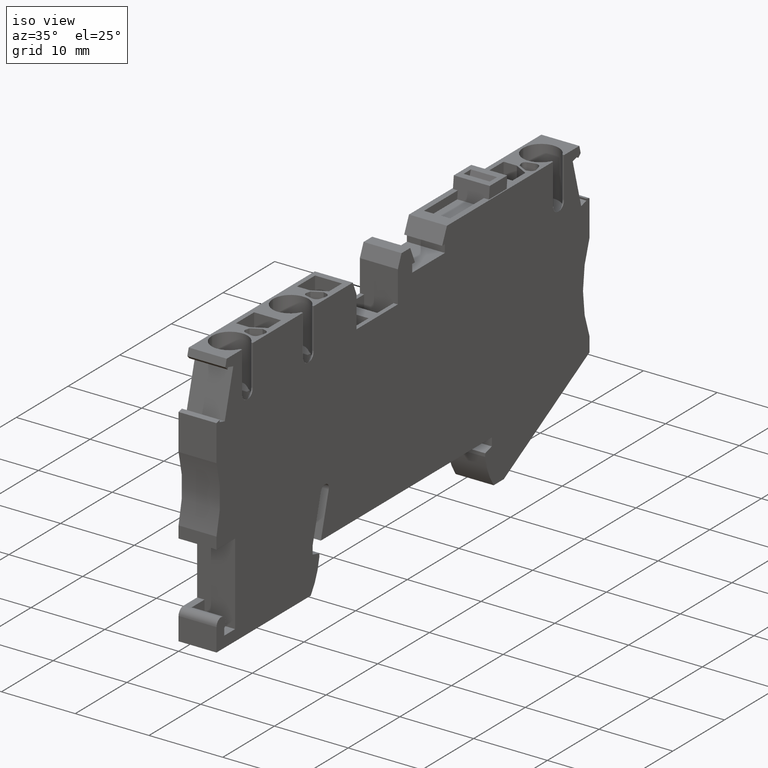
[diagram: clean part render]
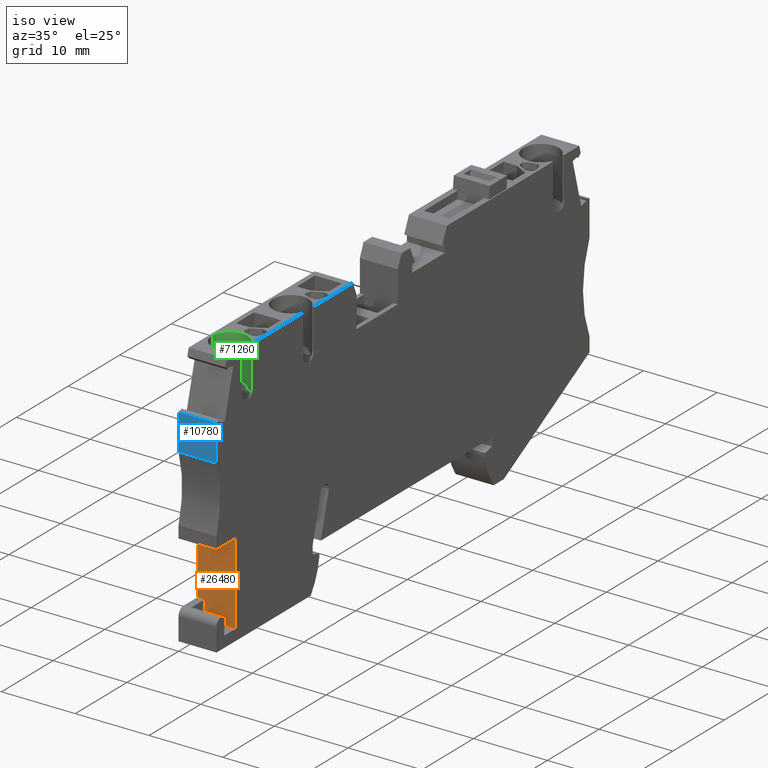
[diagram: same view with three faces highlighted in distinct colors, each labeled with its STEP entity id]
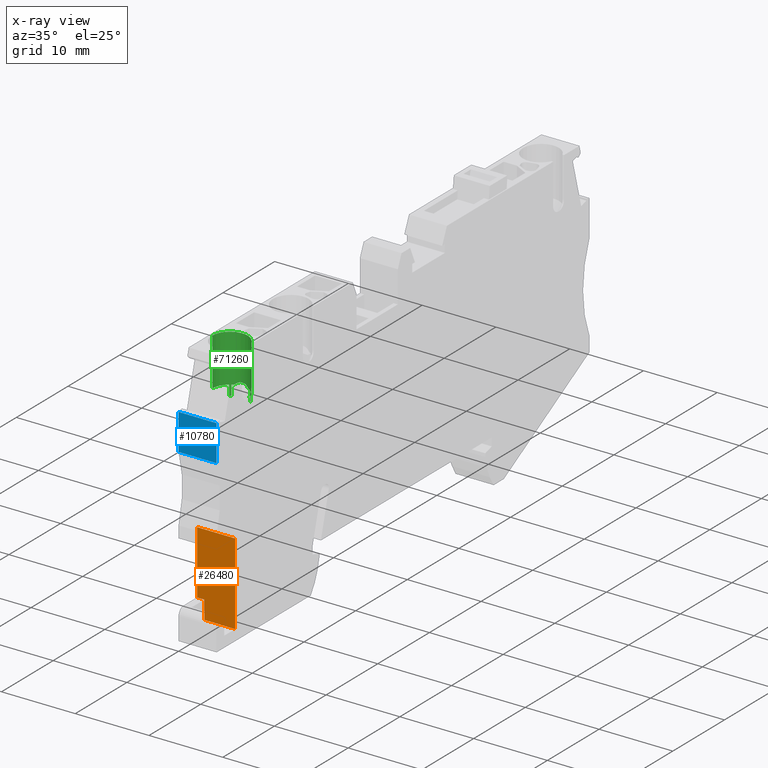
[diagram: x-ray of the same camera — body ghosted, the three highlighted faces saturated]
A machine part, iso view with three faces highlighted in distinct colors.
The next image is the same camera in x-ray (body ghosted, the three faces saturated) — at least one of them is partly hidden behind the body in this view.
Their STEP definitions:

[orange] entity #26480 — the highlighted planar face has unit normal (-0, -1, -0).
#7480=CARTESIAN_POINT('',(-18.7678330870612,-42.9000000000004,49.52));
#7490=VERTEX_POINT('',#7480);
#7520=CARTESIAN_POINT('',(-18.7678330870612,-42.9000000000004,53.67));
#7530=DIRECTION('',(0.,9.06081931640372E-18,-1.));
#7540=VECTOR('',#7530,1.);
#7550=LINE('',#7520,#7540);
#7560=CARTESIAN_POINT('',(-18.7678330870612,-42.9000000000004,
53.6699999999735));
#7570=VERTEX_POINT('',#7560);
#7580=EDGE_CURVE('',#7570,#7490,#7550,.T.);
#8790=CARTESIAN_POINT('',(-18.7678330870612,-40.4000000000016,49.52));
#8800=VERTEX_POINT('',#8790);
#8880=CARTESIAN_POINT('',(-18.7678330870612,-40.4000000000016,
48.5199999999973));
#8890=VERTEX_POINT('',#8880);
#8920=CARTESIAN_POINT('',(-18.7678330870612,-40.4000000000016,53.67));
#8930=DIRECTION('',(0.,0.,1.));
#8940=VECTOR('',#8930,1.);
#8950=LINE('',#8920,#8940);
#8960=EDGE_CURVE('',#8890,#8800,#8950,.T.);
#18850=CARTESIAN_POINT('',(-18.7678330870612,-40.1351813420564,
53.6699999999751));
#18860=DIRECTION('',(0.,-1.,-5.73430192218893E-13));
#18870=VECTOR('',#18860,1.);
#18880=LINE('',#18850,#18870);
#18890=CARTESIAN_POINT('',(-18.7678330870612,-31.8000000000008,
53.6699999999799));
#18900=VERTEX_POINT('',#18890);
#18910=EDGE_CURVE('',#18900,#7570,#18880,.T.);
#26180=CARTESIAN_POINT('',(-18.7678330870612,-39.4000000000017,53.67));
#26190=DIRECTION('',(-1.,0.,0.));
#26200=DIRECTION('',(0.,1.,0.));
#26210=AXIS2_PLACEMENT_3D('',#26180,#26190,#26200);
#26220=PLANE('',#26210);
#26230=ORIENTED_EDGE('',*,*,#18910,.F.);
#26240=ORIENTED_EDGE('',*,*,#7580,.F.);
#26250=CARTESIAN_POINT('',(-18.7678330870612,-40.1351813420564,49.52));
#26260=DIRECTION('',(0.,1.,0.));
#26270=VECTOR('',#26260,1.);
#26280=LINE('',#26250,#26270);
#26290=EDGE_CURVE('',#7490,#8800,#26280,.T.);
#26300=ORIENTED_EDGE('',*,*,#26290,.F.);
#26310=ORIENTED_EDGE('',*,*,#8960,.T.);
#26320=CARTESIAN_POINT('',(-18.7678330870612,-40.1351813420564,
48.5199999999973));
#26330=DIRECTION('',(0.,1.,0.));
#26340=VECTOR('',#26330,1.);
#26350=LINE('',#26320,#26340);
#26360=CARTESIAN_POINT('',(-18.7678330870612,-31.8000000000008,
48.5199999999973));
#26370=VERTEX_POINT('',#26360);
#26380=EDGE_CURVE('',#8890,#26370,#26350,.T.);
#26390=ORIENTED_EDGE('',*,*,#26380,.F.);
#26400=CARTESIAN_POINT('',(-18.7678330870612,-31.8000000000008,53.67));
#26410=DIRECTION('',(0.,0.,1.));
#26420=VECTOR('',#26410,1.);
#26430=LINE('',#26400,#26420);
#26440=EDGE_CURVE('',#26370,#18900,#26430,.T.);
#26450=ORIENTED_EDGE('',*,*,#26440,.F.);
#26460=EDGE_LOOP('',(#26450,#26390,#26310,#26300,#26240,#26230));
#26470=FACE_OUTER_BOUND('',#26460,.T.);
#26480=ADVANCED_FACE('',(#26470),#26220,.T.);

[blue] entity #10780 — the highlighted planar face has unit normal (-0, -1, -0).
#10390=CARTESIAN_POINT('',(-22.3678327783245,-19.2393498779175,53.67));
#10400=DIRECTION('',(-1.,-2.05391259555654E-15,-0.));
#10410=DIRECTION('',(-2.05391259555654E-15,1.,0.));
#10420=AXIS2_PLACEMENT_3D('',#10390,#10400,#10410);
#10430=PLANE('',#10420);
#10440=CARTESIAN_POINT('',(-22.3678327783245,-16.3000793279225,53.67));
#10450=DIRECTION('',(0.,0.,-1.));
#10460=VECTOR('',#10450,1.);
#10470=LINE('',#10440,#10460);
#10480=CARTESIAN_POINT('',(-22.3678327783245,-16.3000793279225,
53.6699999999883));
#10490=VERTEX_POINT('',#10480);
#10500=CARTESIAN_POINT('',(-22.3678327783245,-16.3000793279225,
48.5199999999973));
#10510=VERTEX_POINT('',#10500);
#10520=EDGE_CURVE('',#10490,#10510,#10470,.T.);
#10530=ORIENTED_EDGE('',*,*,#10520,.T.);
#10540=CARTESIAN_POINT('',(-22.3678327783245,-39.6931569607141,
53.6699999999749));
#10550=DIRECTION('',(-2.05391259555654E-15,1.,5.73423253324989E-13));
#10560=VECTOR('',#10550,1.);
#10570=LINE('',#10540,#10560);
#10580=CARTESIAN_POINT('',(-22.3678327783245,-21.2000000000031,
53.6699999999942));
#10590=VERTEX_POINT('',#10580);
#10600=EDGE_CURVE('',#10590,#10490,#10570,.T.);
#10610=ORIENTED_EDGE('',*,*,#10600,.T.);
#10620=CARTESIAN_POINT('',(-22.3678327783245,-21.1999999999745,
53.6699999999942));
#10630=DIRECTION('',(-8.81339598071707E-18,-9.06081931640032E-18,1.));
#10640=VECTOR('',#10630,1.);
#10650=LINE('',#10620,#10640);
#10660=CARTESIAN_POINT('',(-22.3678327783163,-21.2000000000005,
48.5199999999973));
#10670=VERTEX_POINT('',#10660);
#10680=EDGE_CURVE('',#10670,#10590,#10650,.T.);
#10690=ORIENTED_EDGE('',*,*,#10680,.T.);
#10700=CARTESIAN_POINT('',(-22.3678327783245,-39.6931569607141,
48.5199999999973));
#10710=DIRECTION('',(-2.05391259555654E-15,1.,0.));
#10720=VECTOR('',#10710,1.);
#10730=LINE('',#10700,#10720);
#10740=EDGE_CURVE('',#10670,#10510,#10730,.T.);
#10750=ORIENTED_EDGE('',*,*,#10740,.F.);
#10760=EDGE_LOOP('',(#10750,#10690,#10610,#10530));
#10770=FACE_OUTER_BOUND('',#10760,.T.);
#10780=ADVANCED_FACE('',(#10770),#10430,.T.);

[green] entity #71260 — the highlighted cylindrical surface (edge-blend (fillet) strip) has radius 2.4 mm, axis along (-0, -0, -1).
#3260=CARTESIAN_POINT('',(-15.3428330870473,-9.15000000000282,
53.4517424229313));
#3270=VERTEX_POINT('',#3260);
#3300=CARTESIAN_POINT('',(-16.3428330870473,-9.15000000000221,
51.2700000000042));
#3310=DIRECTION('',(6.00033911446474E-13,1.,5.07383066415006E-18));
#3320=DIRECTION('',(-1.,6.00033911446474E-13,-1.41881165854314E-17));
#3330=AXIS2_PLACEMENT_3D('',#3300,#3310,#3320);
#3340=CIRCLE('',#3330,2.4);
#3350=CARTESIAN_POINT('',(-16.3428330870472,-9.15000000000221,
48.8700000000042));
#3360=VERTEX_POINT('',#3350);
#3370=EDGE_CURVE('',#3270,#3360,#3340,.T.);
#19760=CARTESIAN_POINT('',(-16.3428330870508,-15.644522446679,
53.6699999999894));
#19770=VERTEX_POINT('',#19760);
#67650=CARTESIAN_POINT('',(-16.3428330870512,-15.644522446652,
51.2700000000042));
#67660=DIRECTION('',(6.00033911446474E-13,1.,5.07383066415006E-18));
#67670=DIRECTION('',(-1.,6.03725403003352E-13,-1.41881165854314E-17));
#67680=AXIS2_PLACEMENT_3D('',#67650,#67660,#67670);
#67690=CIRCLE('',#67680,2.4);
#67700=CARTESIAN_POINT('',(-14.1549477777657,-15.6445224466548,
50.2835123551688));
#67710=VERTEX_POINT('',#67700);
#67720=CARTESIAN_POINT('',(-14.2928330870515,-15.6445224466532,
50.0220016025688));
#67730=VERTEX_POINT('',#67720);
#67740=EDGE_CURVE('',#67710,#67730,#67690,.T.);
#68620=CARTESIAN_POINT('',(-14.1549477777644,-15.644522446653,
52.2564876448391));
#68630=VERTEX_POINT('',#68620);
#68750=CARTESIAN_POINT('',(-16.342833087054,-20.3364576336989,
51.2700000000042));
#68760=DIRECTION('',(-0.906307787036447,0.422618261741135,
-1.07145070491146E-17));
#68770=DIRECTION('',(0.422618261741135,0.906307787036447,
1.0594609409734E-17));
#68780=AXIS2_PLACEMENT_3D('',#68750,#68760,#68770);
#68790=ELLIPSE('',#68780,5.67888379956745,2.4);
#68800=EDGE_CURVE('',#68630,#67710,#68790,.T.);
#68960=CARTESIAN_POINT('',(-14.2928330870518,-16.9888751282986,
52.517998397438));
#68970=VERTEX_POINT('',#68960);
#68980=CARTESIAN_POINT('',(-14.2928330870518,-16.9888751282986,
50.0220016025702));
#68990=VERTEX_POINT('',#68980);
#69020=CARTESIAN_POINT('',(-14.292833087047,-6.99021844665512,
50.0220016025676));
#69030=DIRECTION('',(-6.00033911446474E-13,-1.,-5.07383066415006E-18));
#69040=VECTOR('',#69030,1.);
#69050=LINE('',#69020,#69040);
#69060=EDGE_CURVE('',#67730,#68990,#69050,.T.);
#69300=CARTESIAN_POINT('',(-14.2928330870503,-15.6445224466529,
52.5179983974396));
#69310=VERTEX_POINT('',#69300);
#69340=CARTESIAN_POINT('',(-14.292833087047,-6.99021844665512,
52.5179983974407));
#69350=DIRECTION('',(-6.00033911446474E-13,-1.,-5.07383066415006E-18));
#69360=VECTOR('',#69350,1.);
#69370=LINE('',#69340,#69360);
#69380=EDGE_CURVE('',#69310,#68970,#69370,.T.);
#69520=CARTESIAN_POINT('',(-16.3428330870512,-15.6445224466519,
51.2700000000042));
#69530=DIRECTION('',(6.00033911446474E-13,1.,5.07383066415006E-18));
#69540=DIRECTION('',(-1.,6.01893535012721E-13,-1.41881165854314E-17));
#69550=AXIS2_PLACEMENT_3D('',#69520,#69530,#69540);
#69560=CIRCLE('',#69550,2.4);
#69570=EDGE_CURVE('',#69310,#68630,#69560,.T.);
#69690=CARTESIAN_POINT('',(-16.342833087046,-6.99021844665389,
51.2700000000042));
#69700=DIRECTION('',(-6.00033911446474E-13,-1.,-5.07383066415006E-18));
#69710=DIRECTION('',(-1.,5.9999227808305E-13,-1.41881165854314E-17));
#69720=AXIS2_PLACEMENT_3D('',#69690,#69700,#69710);
#69730=CYLINDRICAL_SURFACE('',#69720,2.4);
#69740=CARTESIAN_POINT('',(-16.342833087046,-6.99021844665389,
48.8700000000042));
#69750=DIRECTION('',(-6.00006155870858E-13,-1.,-5.07383066415006E-18));
#69760=VECTOR('',#69750,1.);
#69770=LINE('',#69740,#69760);
#69780=CARTESIAN_POINT('',(-16.3428330870511,-15.6445224466535,
48.8700000000042));
#69790=VERTEX_POINT('',#69780);
#69800=EDGE_CURVE('',#3360,#69790,#69770,.T.);
#69810=ORIENTED_EDGE('',*,*,#69800,.T.);
#69820=ORIENTED_EDGE('',*,*,#3370,.T.);
#69830=CARTESIAN_POINT('',(-15.342833087047,-6.9902184466545,
53.4517424229318));
#69840=DIRECTION('',(-6.00033911446474E-13,-1.,-5.07383066415006E-18));
#69850=VECTOR('',#69840,1.);
#69860=LINE('',#69830,#69850);
#69870=CARTESIAN_POINT('',(-15.3428330870498,-14.6445224466602,
53.451742422931));
#69880=VERTEX_POINT('',#69870);
#69890=EDGE_CURVE('',#3270,#69880,#69860,.T.);
#69900=ORIENTED_EDGE('',*,*,#69890,.F.);
#69910=CARTESIAN_POINT('',(-16.3428330870498,-14.6445224466598,
53.6700000000006));
#69920=DIRECTION('',(4.66977552505408E-17,-9.06081931642173E-18,1.));
#69930=DIRECTION('',(-1.,3.74478226206065E-13,-1.41881165854326E-17));
#69940=AXIS2_PLACEMENT_3D('',#69910,#69920,#69930);
#69950=CYLINDRICAL_SURFACE('',#69940,0.999999999999998);
#69960=CARTESIAN_POINT('',(-15.3428330870498,-14.6445224466602,
53.451742422931));
#69970=CARTESIAN_POINT('',(-15.3428330870498,-14.6609937294319,
53.451742422931));
#69980=CARTESIAN_POINT('',(-15.3432403080421,-14.6775034901492,
53.4519292120811));
#69990=CARTESIAN_POINT('',(-15.3440588541212,-14.6940202409314,
53.4523038357787));
#70000=CARTESIAN_POINT('',(-15.3448773952683,-14.7105368921962,
53.4526784572191));
#70010=CARTESIAN_POINT('',(-15.3461072804953,-14.72706014291,
53.4532409214868));
#70020=CARTESIAN_POINT('',(-15.3477489812098,-14.7435558869948,
53.453988924496));
#70030=CARTESIAN_POINT('',(-15.3493906760865,-14.7600515724208,
53.4547369248453));
#70040=CARTESIAN_POINT('',(-15.3514441672515,-14.7765193468151,
53.4556704484424));
#70050=CARTESIAN_POINT('',(-15.3539058974579,-14.7929239752425,
53.4567837144314));
#70060=CARTESIAN_POINT('',(-15.3563676243392,-14.8093285815131,
53.4578969789167));
#70070=CARTESIAN_POINT('',(-15.3592375362397,-14.8256696451151,
53.4591899484136));
#70080=CARTESIAN_POINT('',(-15.3625079870179,-14.8419121582644,
53.4606534865797));
#70090=CARTESIAN_POINT('',(-15.3657784399607,-14.8581546821641,
53.4621170257145));
#70100=CARTESIAN_POINT('',(-15.369449348533,-14.8742982838267,
53.4637510781331));
#70110=CARTESIAN_POINT('',(-15.3735092082711,-14.890309382906,
53.4655434903563));
#70120=CARTESIAN_POINT('',(-15.3775690784266,-14.9063205230689,
53.4673359071787));
#70130=CARTESIAN_POINT('',(-15.3820177940069,-14.9221988263394,
53.4692866155143));
#70140=CARTESIAN_POINT('',(-15.3868404735513,-14.9379131808971,
53.4713809581608));
#70150=CARTESIAN_POINT('',(-15.3916631745556,-14.9536276053801,
53.4734753101266));
#70160=CARTESIAN_POINT('',(-15.3968597182003,-14.9691777925232,
53.4757132207872));
#70170=CARTESIAN_POINT('',(-15.4024125481894,-14.9845359906391,
53.4780781711946));
#70180=CARTESIAN_POINT('',(-15.4079647499942,-14.9998924513025,
53.4804428540583));
#70190=CARTESIAN_POINT('',(-15.4138678643509,-15.0150487251236,
53.4829324523821));
#70200=CARTESIAN_POINT('',(-15.420157723238,-15.0301001599871,
53.4855518890406));
#70210=CARTESIAN_POINT('',(-15.4327305439475,-15.0601865252548,
53.4907878900477));
#70220=CARTESIAN_POINT('',(-15.4467940046149,-15.0896960648176,
53.4965198229913));
#70230=CARTESIAN_POINT('',(-15.4622642809246,-15.1184407705083,
53.5026214586661));
#70240=CARTESIAN_POINT('',(-15.4777343902413,-15.1471851659159,
53.5087230284771));
#70250=CARTESIAN_POINT('',(-15.4946087967435,-15.1751596680484,
53.5151926651029));
#70260=CARTESIAN_POINT('',(-15.5127677222216,-15.2021885565439,
53.5218862071895));
#70270=CARTESIAN_POINT('',(-15.5309267194966,-15.2292175519067,
53.528579775741));
#70280=CARTESIAN_POINT('',(-15.5503672589357,-15.2552967194889,
53.5354955421319));
#70290=CARTESIAN_POINT('',(-15.5709415579812,-15.2802766974141,
53.5424839861634));
#70300=CARTESIAN_POINT('',(-15.5812286080685,-15.2927665656487,
53.5459781744041));
#70310=CARTESIAN_POINT('',(-15.5917984277485,-15.3049817409913,
53.5494904283236));
#70320=CARTESIAN_POINT('',(-15.6026306785544,-15.3169065589479,
53.5530024955034));
#70330=CARTESIAN_POINT('',(-15.6134552569508,-15.3288229306372,
53.55651207511));
#70340=CARTESIAN_POINT('',(-15.6245664215599,-15.3404778543496,
53.5600296859589));
#70350=CARTESIAN_POINT('',(-15.6359929032091,-15.3518957247161,
53.5635511667555));
#70360=CARTESIAN_POINT('',(-15.6588389289684,-15.3747245331383,
53.5705919902967));
#70370=CARTESIAN_POINT('',(-15.6828880081718,-15.3965395335474,
53.5776288969995));
#70380=CARTESIAN_POINT('',(-15.7080107605277,-15.4171805947195,
53.5845195211457));
#70390=CARTESIAN_POINT('',(-15.7331333193769,-15.437821496905,
53.5914100922173));
#70400=CARTESIAN_POINT('',(-15.7593258149986,-15.4572850875964,
53.5981528035489));
#70410=CARTESIAN_POINT('',(-15.7864273545065,-15.4754331884507,
53.6046118865468));
#70420=CARTESIAN_POINT('',(-15.813529061269,-15.4935814013043,
53.6110710094064));
#70430=CARTESIAN_POINT('',(-15.8415351796973,-15.5104110936745,
53.6172450042276));
#70440=CARTESIAN_POINT('',(-15.8702651138055,-15.525816671461,
53.6230149830975));
#70450=CARTESIAN_POINT('',(-15.8846299182397,-15.5335193731542,
53.6258999398727));
#70460=CARTESIAN_POINT('',(-15.8991749740265,-15.5408663359019,
53.628684116209));
#70470=CARTESIAN_POINT('',(-15.913876965818,-15.5478477734705,
53.631354832734));
#70480=CARTESIAN_POINT('',(-15.9285756114341,-15.554827622063,
53.6340249414036));
#70490=CARTESIAN_POINT('',(-15.9434333581312,-15.5614446777845,
53.6365825548621));
#70500=CARTESIAN_POINT('',(-15.9585049879725,-15.5677190195843,
53.6390276301213));
#70510=CARTESIAN_POINT('',(-15.9735702999996,-15.5739907312687,
53.6414716804396));
#70520=CARTESIAN_POINT('',(-15.9888219262792,-15.5799070348114,
53.643798306085));
#70530=CARTESIAN_POINT('',(-16.0042322156571,-15.5854525449627,
53.6459944128535));
#70540=CARTESIAN_POINT('',(-16.0196424917239,-15.5909980503238,
53.6481905177249));
#70550=CARTESIAN_POINT('',(-16.035211171245,-15.5961726603879,
53.6502560521847));
#70560=CARTESIAN_POINT('',(-16.0509088309438,-15.6009638869462,
53.6521797221696));
#70570=CARTESIAN_POINT('',(-16.0666065020385,-15.6057551169828,
53.654103393551));
#70580=CARTESIAN_POINT('',(-16.0824328722673,-15.6101628796643,
53.6558851574079));
#70590=CARTESIAN_POINT('',(-16.0983576062822,-15.6141779211988,
53.6575158092299));
#70600=CARTESIAN_POINT('',(-16.1142838374305,-15.6181933401997,
53.6591466143545));
#70610=CARTESIAN_POINT('',(-16.1303017630678,-15.6218146081574,
53.6606257164884));
#70620=CARTESIAN_POINT('',(-16.1463993515886,-15.6250395487915,
53.6619476975035));
#70630=CARTESIAN_POINT('',(-16.1625040796349,-15.6282659197358,
53.6632702648372));
#70640=CARTESIAN_POINT('',(-16.1787193103891,-15.6311014082659,
53.6644379566846));
#70650=CARTESIAN_POINT('',(-16.1950119234757,-15.6335365535357,
53.6654433626406));
#70660=CARTESIAN_POINT('',(-16.2113045171755,-15.6359716959079,
53.6664487674003));
#70670=CARTESIAN_POINT('',(-16.2276741414311,-15.6380064328461,
53.6672918544085));
#70680=CARTESIAN_POINT('',(-16.2440863680849,-15.6396350460643,
53.6679676990138));
#70690=CARTESIAN_POINT('',(-16.2769276808926,-15.6428939454976,
53.6693200824873));
#70700=CARTESIAN_POINT('',(-16.3098641101251,-15.6445224466598,
53.6700000000041));
#70710=CARTESIAN_POINT('',(-16.3428330870507,-15.6445224466598,
53.6700000000042));
#70720=B_SPLINE_CURVE_WITH_KNOTS('',3,(#69960,#69970,#69980,#69990,
#70000,#70010,#70020,#70030,#70040,#70050,#70060,#70070,#70080,#70090,
#70100,#70110,#70120,#70130,#70140,#70150,#70160,#70170,#70180,#70190,
#70200,#70210,#70220,#70230,#70240,#70250,#70260,#70270,#70280,#70290,
#70300,#70310,#70320,#70330,#70340,#70350,#70360,#70370,#70380,#70390,
#70400,#70410,#70420,#70430,#70440,#70450,#70460,#70470,#70480,#70490,
#70500,#70510,#70520,#70530,#70540,#70550,#70560,#70570,#70580,#70590,
#70600,#70610,#70620,#70630,#70640,#70650,#70660,#70670,#70680,#70690,
#70700,#70710),.UNSPECIFIED.,.F.,.F.,(4,3,3,3,3,3,3,3,3,3,3,3,3,3,3,3,3,
3,3,3,3,3,3,3,3,4),(0.,0.0495222692515461,0.0992298942329222,
0.149064989412234,0.1989590331599,0.248837074435065,0.298621508203755,
0.348235771127555,0.39770663307455,0.497087658472418,0.596803861500489,
0.696371962687514,0.745940559031628,0.795428028473134,0.894905849219853,
0.994675469479921,1.09424413440862,1.14381654088092,1.1932727156861,
1.24281586857656,1.29239520600219,1.34194342067877,1.3914023645501,
1.44088137071477,1.49040354021141,1.58933923289444),.UNSPECIFIED.);
#70730=SURFACE_CURVE('',#70720,(#69730,#69950),.CURVE_3D.);
#70740=EDGE_CURVE('',#69880,#19770,#70730,.T.);
#70750=ORIENTED_EDGE('',*,*,#70740,.F.);
#70760=CARTESIAN_POINT('',(-16.3428330870512,-15.6445224466519,
51.2700000000042));
#70770=DIRECTION('',(6.00033911446474E-13,1.,5.07383066415006E-18));
#70780=DIRECTION('',(-1.,6.01893535012721E-13,-1.41881165854314E-17));
#70790=AXIS2_PLACEMENT_3D('',#70760,#70770,#70780);
#70800=CIRCLE('',#70790,2.4);
#70810=CARTESIAN_POINT('',(-14.4303739371593,-15.6445224466528,
52.720000000004));
#70820=VERTEX_POINT('',#70810);
#70830=EDGE_CURVE('',#19770,#70820,#70800,.T.);
#70840=ORIENTED_EDGE('',*,*,#70830,.F.);
#70850=CARTESIAN_POINT('',(-14.4303739371555,-6.99021844665504,
52.7200000000042));
#70860=DIRECTION('',(-6.00033911446474E-13,-1.,-5.07383066415006E-18));
#70870=VECTOR('',#70860,1.);
#70880=LINE('',#70850,#70870);
#70890=CARTESIAN_POINT('',(-14.4303739371615,-17.0682843751339,
52.7200000000042));
#70900=VERTEX_POINT('',#70890);
#70910=EDGE_CURVE('',#70820,#70900,#70880,.T.);
#70920=ORIENTED_EDGE('',*,*,#70910,.F.);
#70930=CARTESIAN_POINT('',(-16.3428330870527,-18.1724431801366,
51.2700000000042));
#70940=DIRECTION('',(-0.499999999999616,0.86602540378466,
-2.69999204306927E-18));
#70950=DIRECTION('',(0.86602540378466,0.499999999999616,
1.48241847269233E-17));
#70960=AXIS2_PLACEMENT_3D('',#70930,#70940,#70950);
#70970=ELLIPSE('',#70960,2.77128129211045,2.4);
#70980=EDGE_CURVE('',#70900,#68970,#70970,.T.);
#70990=ORIENTED_EDGE('',*,*,#70980,.F.);
#71000=ORIENTED_EDGE('',*,*,#69380,.T.);
#71010=ORIENTED_EDGE('',*,*,#69570,.F.);
#71020=ORIENTED_EDGE('',*,*,#68800,.F.);
#71030=ORIENTED_EDGE('',*,*,#67740,.F.);
#71040=ORIENTED_EDGE('',*,*,#69060,.F.);
#71050=CARTESIAN_POINT('',(-14.4303739371615,-17.0682843751339,
49.8200000000042));
#71060=VERTEX_POINT('',#71050);
#71070=EDGE_CURVE('',#68990,#71060,#70970,.T.);
#71080=ORIENTED_EDGE('',*,*,#71070,.F.);
#71090=CARTESIAN_POINT('',(-14.4303739371554,-6.99021844665504,
49.8200000000042));
#71100=DIRECTION('',(-6.00033911446474E-13,-1.,-5.07383066415006E-18));
#71110=VECTOR('',#71100,1.);
#71120=LINE('',#71090,#71110);
#71130=CARTESIAN_POINT('',(-14.4303739371606,-15.6445224466531,
49.8200000000042));
#71140=VERTEX_POINT('',#71130);
#71150=EDGE_CURVE('',#71140,#71060,#71120,.T.);
#71160=ORIENTED_EDGE('',*,*,#71150,.T.);
#71170=CARTESIAN_POINT('',(-16.3428330870512,-15.644522446652,
51.2700000000042));
#71180=DIRECTION('',(6.00033911446474E-13,1.,5.07383066415006E-18));
#71190=DIRECTION('',(-1.,6.03725403003352E-13,-1.41881165854314E-17));
#71200=AXIS2_PLACEMENT_3D('',#71170,#71180,#71190);
#71210=CIRCLE('',#71200,2.4);
#71220=EDGE_CURVE('',#71140,#69790,#71210,.T.);
#71230=ORIENTED_EDGE('',*,*,#71220,.F.);
#71240=EDGE_LOOP('',(#71230,#71160,#71080,#71040,#71030,#71020,#71010,
#71000,#70990,#70920,#70840,#70750,#69900,#69820,#69810));
#71250=FACE_OUTER_BOUND('',#71240,.T.);
#71260=ADVANCED_FACE('',(#71250),#69730,.F.);